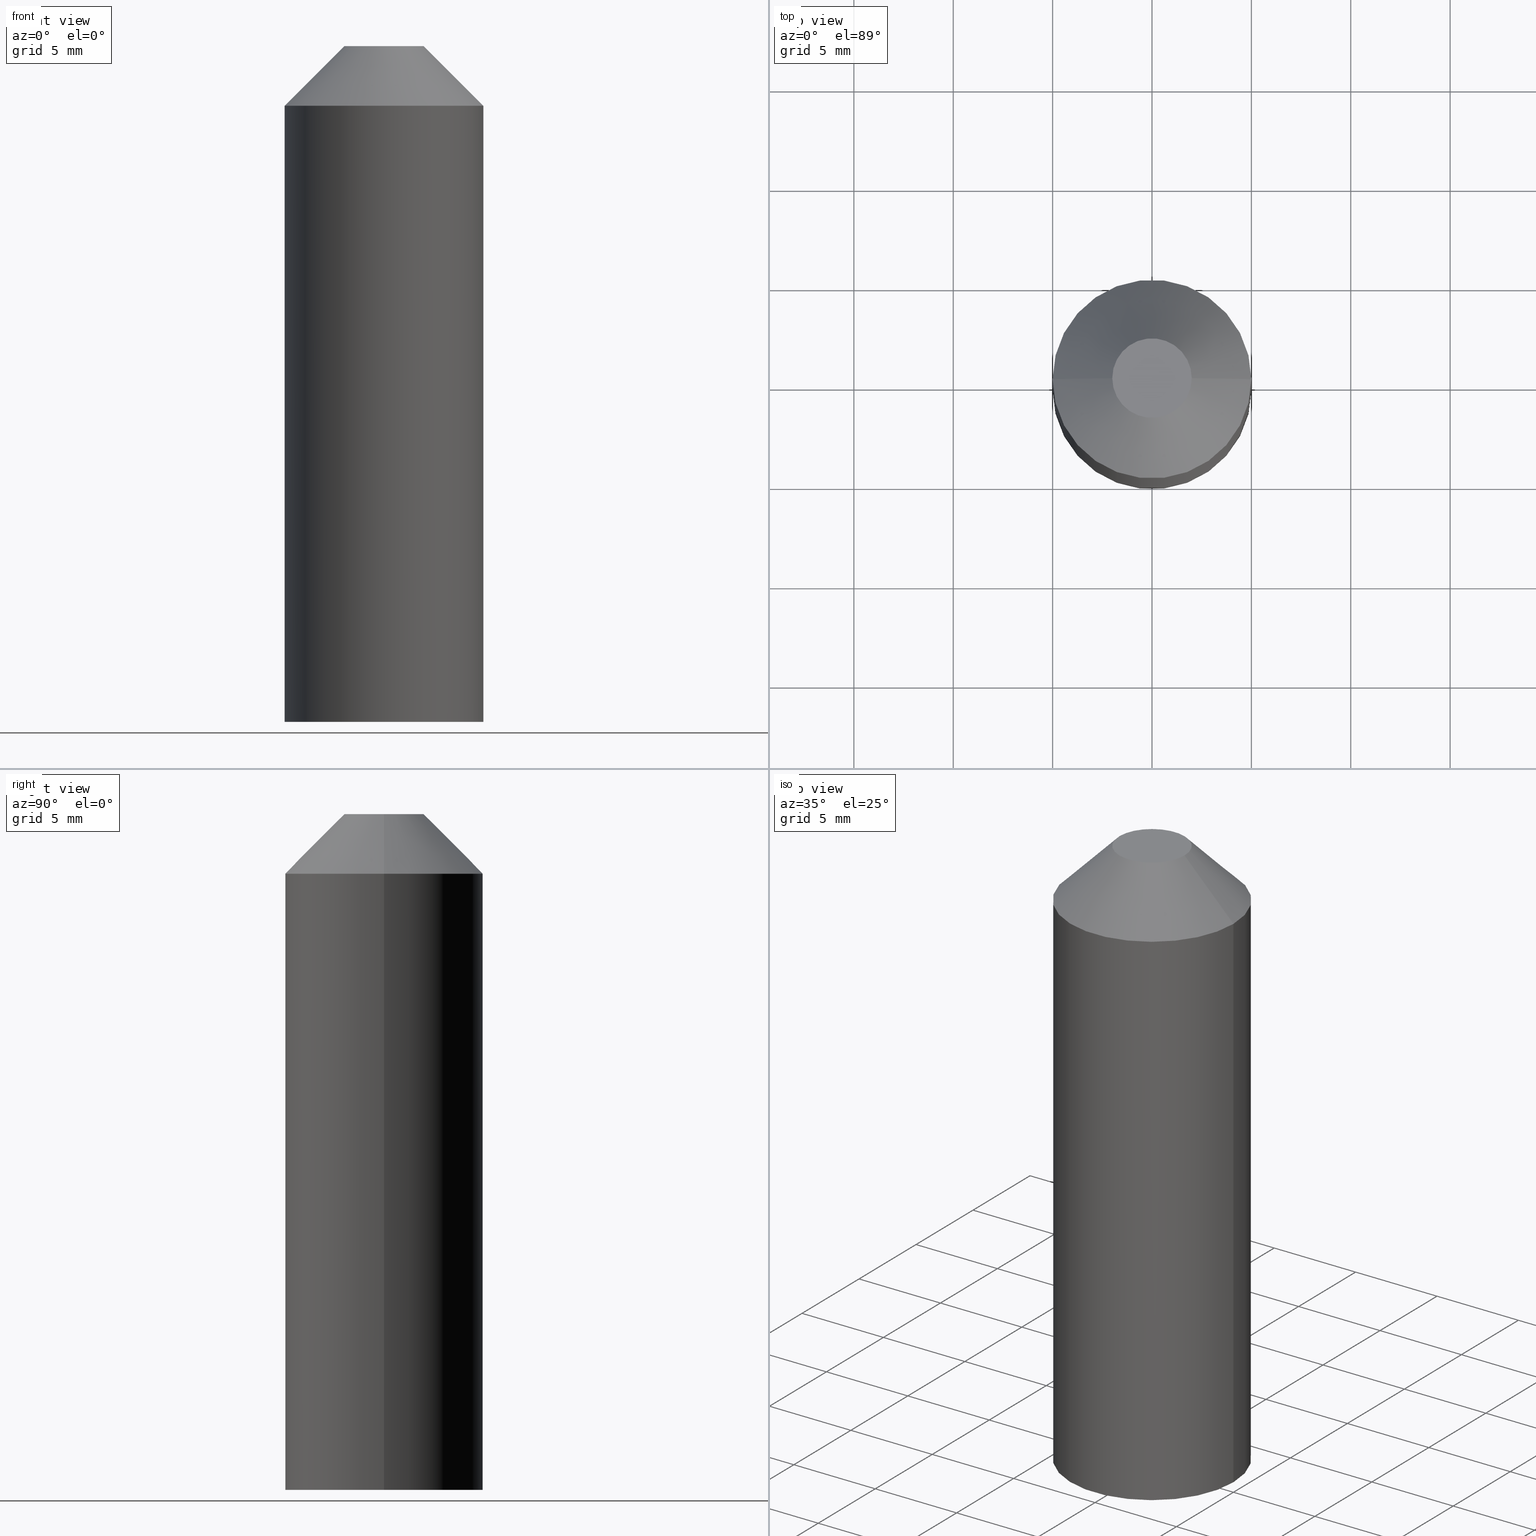
[diagram: canonical four-view strip — front | top / right | iso, engineering-drawing reading convention]
A machine part, canonical four-view strip (front | top / right | iso — engineering-drawing reading convention). The complete STEP part file that produces these views, byte-faithful:
ISO-10303-21;
HEADER;
FILE_DESCRIPTION (( 'STEP AP214' ),
    '1' );
FILE_NAME ('THA_324_1S.STEP',
    '2016-09-20T01:25:16',
    ( '' ),
    ( '' ),
    'SwSTEP 2.0',
    'SolidWorks 2015',
    '' );
FILE_SCHEMA (( 'AUTOMOTIVE_DESIGN' ));
ENDSEC;

DATA;
#1 = ORIENTED_EDGE ( 'NONE', *, *, #175, .F. ) ;
#2 = EDGE_CURVE ( 'NONE', #95, #160, #85, .T. ) ;
#3 = MECHANICAL_DESIGN_GEOMETRIC_PRESENTATION_REPRESENTATION (  '', ( #28 ), #21 ) ;
#4 = APPLICATION_PROTOCOL_DEFINITION ( 'draft international standard', 'automotive_design', 1998, #268 ) ;
#5 = ADVANCED_FACE ( 'NONE', ( #286 ), #285, .T. ) ;
#6 =( LENGTH_UNIT ( ) NAMED_UNIT ( * ) SI_UNIT ( .MILLI., .METRE. ) );
#7 = ORIENTED_EDGE ( 'NONE', *, *, #61, .F. ) ;
#8 = FILL_AREA_STYLE_COLOUR ( '', #144 ) ;
#9 = UNCERTAINTY_MEASURE_WITH_UNIT (LENGTH_MEASURE( 1.000000000000000100E-005 ), #271, 'distance_accuracy_value', 'NONE');
#10 = CARTESIAN_POINT ( 'NONE',  ( 1.999999999999999100, 4.286263797015613800E-016, 4.000000000000287800 ) ) ;
#11 = CIRCLE ( 'NONE', #259, 1.999999999999899900 ) ;
#12 = AXIS2_PLACEMENT_3D ( 'NONE', #132, #242, #137 ) ;
#13 = CARTESIAN_POINT ( 'NONE',  ( 9.947598300641398800E-014, 0.0000000000000000000, 4.000000000000287800 ) ) ;
#14 = PRESENTATION_STYLE_ASSIGNMENT (( #73 ) ) ;
#15 = ORIENTED_EDGE ( 'NONE', *, *, #169, .T. ) ;
#16 = CARTESIAN_POINT ( 'NONE',  ( 9.947598300641398800E-014, 0.0000000000000000000, -30.00000000000000000 ) ) ;
#17 = CARTESIAN_POINT ( 'NONE',  ( 9.947598300641398800E-014, 0.0000000000000000000, -30.00000000000000000 ) ) ;
#18 = VECTOR ( 'NONE', #114, 1000.000000000000000 ) ;
#19 = CYLINDRICAL_SURFACE ( 'NONE', #148, 4.999999999999900500 ) ;
#20 = DIRECTION ( 'NONE',  ( 1.000000000000000000, 0.0000000000000000000, 0.0000000000000000000 ) ) ;
#21 =( GEOMETRIC_REPRESENTATION_CONTEXT ( 3 ) GLOBAL_UNCERTAINTY_ASSIGNED_CONTEXT ( ( #119 ) ) GLOBAL_UNIT_ASSIGNED_CONTEXT ( ( #81, #278, #212 ) ) REPRESENTATION_CONTEXT ( 'NONE', 'WORKASPACE' ) );
#22 = CARTESIAN_POINT ( 'NONE',  ( 3.949999999999890000, 0.0000000000000000000, -30.00000000000000000 ) ) ;
#23 = CYLINDRICAL_SURFACE ( 'NONE', #181, 3.949999999999790600 ) ;
#24 = DIRECTION ( 'NONE',  ( 1.000000000000000000, 0.0000000000000000000, 0.0000000000000000000 ) ) ;
#25 = CIRCLE ( 'NONE', #164, 4.999999999999900500 ) ;
#26 = LINE ( 'NONE', #161, #18 ) ;
#27 = CONICAL_SURFACE ( 'NONE', #218, 1.999999999999899900, 0.7853981633974479500 ) ;
#28 = STYLED_ITEM ( 'NONE', ( #54 ), #172 ) ;
#29 = ADVANCED_FACE ( 'NONE', ( #184 ), #23, .F. ) ;
#30 = DIRECTION ( 'NONE',  ( -0.0000000000000000000, 0.0000000000000000000, -1.000000000000000000 ) ) ;
#31 = VERTEX_POINT ( 'NONE', #140 ) ;
#32 = CARTESIAN_POINT ( 'NONE',  ( 1.999999999999999100, 2.449293598294584100E-016, 4.000000000000287800 ) ) ;
#33 = EDGE_CURVE ( 'NONE', #68, #160, #25, .T. ) ;
#34 = AXIS2_PLACEMENT_3D ( 'NONE', #56, #275, #158 ) ;
#35 = DIRECTION ( 'NONE',  ( 0.0000000000000000000, 0.0000000000000000000, 1.000000000000000000 ) ) ;
#36 = CARTESIAN_POINT ( 'NONE',  ( 0.0000000000000000000, 0.0000000000000000000, 0.0000000000000000000 ) ) ;
#37 = ORIENTED_EDGE ( 'NONE', *, *, #116, .F. ) ;
#38 = CARTESIAN_POINT ( 'NONE',  ( 9.947598300641398800E-014, 0.0000000000000000000, -30.00000000000000000 ) ) ;
#39 = CONTEXT_DEPENDENT_SHAPE_REPRESENTATION ( #69, #224 ) ;
#40 = CARTESIAN_POINT ( 'NONE',  ( -4.999999999999801000, 6.123233995736644000E-016, -30.00000000000000000 ) ) ;
#41 = PRODUCT_DEFINITION_CONTEXT ( 'detailed design', #268, 'design' ) ;
#42 = DIRECTION ( 'NONE',  ( 1.000000000000000000, 0.0000000000000000000, 0.0000000000000000000 ) ) ;
#43 = FACE_OUTER_BOUND ( 'NONE', #187, .T. ) ;
#44 = ORIENTED_EDGE ( 'NONE', *, *, #93, .F. ) ;
#45 = SHAPE_DEFINITION_REPRESENTATION ( #179, #266 ) ;
#46 = CIRCLE ( 'NONE', #131, 3.949999999999790600 ) ;
#47 = EDGE_CURVE ( 'NONE', #186, #31, #304, .T. ) ;
#48 = DIRECTION ( 'NONE',  ( 0.0000000000000000000, 0.0000000000000000000, 1.000000000000000000 ) ) ;
#49 = PRESENTATION_LAYER_ASSIGNMENT (  '', '', ( #219 ) ) ;
#50 = PLANE ( 'NONE',  #182 ) ;
#51 = APPLICATION_CONTEXT ( 'automotive_design' ) ;
#52 = DIRECTION ( 'NONE',  ( 1.000000000000000000, 0.0000000000000000000, 0.0000000000000000000 ) ) ;
#53 = CIRCLE ( 'NONE', #246, 3.949999999999790600 ) ;
#54 = PRESENTATION_STYLE_ASSIGNMENT (( #111 ) ) ;
#55 = DIRECTION ( 'NONE',  ( 0.0000000000000000000, 0.0000000000000000000, 1.000000000000000000 ) ) ;
#56 = CARTESIAN_POINT ( 'NONE',  ( 9.947598300641398800E-014, 0.0000000000000000000, 0.0000000000000000000 ) ) ;
#57 = CARTESIAN_POINT ( 'NONE',  ( 9.947598300641398800E-014, 0.0000000000000000000, 4.000000000000287800 ) ) ;
#58 = SHAPE_REPRESENTATION_RELATIONSHIP ( 'NONE' , 'NONE' ,  #162, #262 ) ;
#59 = CARTESIAN_POINT ( 'NONE',  ( 5.000000000000000000, 0.0000000000000000000, -30.00000000000000000 ) ) ;
#60 = ORIENTED_EDGE ( 'NONE', *, *, #267, .F. ) ;
#61 = EDGE_CURVE ( 'NONE', #257, #156, #200, .T. ) ;
#62 = AXIS2_PLACEMENT_3D ( 'NONE', #157, #189, #294 ) ;
#63 = DIRECTION ( 'NONE',  ( -0.7071067811865472400, 0.0000000000000000000, -0.7071067811865479100 ) ) ;
#64 = CARTESIAN_POINT ( 'NONE',  ( 5.000000000000000000, 0.0000000000000000000, 1.000000000000285300 ) ) ;
#65 = EDGE_LOOP ( 'NONE', ( #174, #121 ) ) ;
#66 = MECHANICAL_DESIGN_GEOMETRIC_PRESENTATION_REPRESENTATION (  '', ( #219 ), #82 ) ;
#67 = ORIENTED_EDGE ( 'NONE', *, *, #33, .T. ) ;
#68 = VERTEX_POINT ( 'NONE', #118 ) ;
#69 =( REPRESENTATION_RELATIONSHIP ('NONE','NONE', #266, #162 ) REPRESENTATION_RELATIONSHIP_WITH_TRANSFORMATION ( #238 )SHAPE_REPRESENTATION_RELATIONSHIP( ) );
#70 = FACE_OUTER_BOUND ( 'NONE', #260, .T. ) ;
#71 = APPLICATION_CONTEXT ( 'automotive_design' ) ;
#72 = ORIENTED_EDGE ( 'NONE', *, *, #265, .T. ) ;
#73 = SURFACE_STYLE_USAGE ( .BOTH. , #270 ) ;
#74 = FACE_OUTER_BOUND ( 'NONE', #65, .T. ) ;
#75 = CARTESIAN_POINT ( 'NONE',  ( 0.0000000000000000000, 0.0000000000000000000, 0.0000000000000000000 ) ) ;
#76 = CARTESIAN_POINT ( 'NONE',  ( 9.947598300641398800E-014, 0.0000000000000000000, -30.00000000000000000 ) ) ;
#77 = PRODUCT_DEFINITION_CONTEXT ( 'detailed design', #94, 'design' ) ;
#78 = AXIS2_PLACEMENT_3D ( 'NONE', #239, #87, #274 ) ;
#79 = DIRECTION ( 'NONE',  ( 0.0000000000000000000, 0.0000000000000000000, 1.000000000000000000 ) ) ;
#80 = VECTOR ( 'NONE', #217, 1000.000000000000000 ) ;
#81 =( LENGTH_UNIT ( ) NAMED_UNIT ( * ) SI_UNIT ( .MILLI., .METRE. ) );
#82 =( GEOMETRIC_REPRESENTATION_CONTEXT ( 3 ) GLOBAL_UNCERTAINTY_ASSIGNED_CONTEXT ( ( #216 ) ) GLOBAL_UNIT_ASSIGNED_CONTEXT ( ( #204, #254, #91 ) ) REPRESENTATION_CONTEXT ( 'NONE', 'WORKASPACE' ) );
#83 = DIRECTION ( 'NONE',  ( -0.0000000000000000000, -0.0000000000000000000, -1.000000000000000000 ) ) ;
#84 = CARTESIAN_POINT ( 'NONE',  ( 9.947598300641398800E-014, 0.0000000000000000000, 4.000000000000287800 ) ) ;
#85 = LINE ( 'NONE', #59, #80 ) ;
#86 = CARTESIAN_POINT ( 'NONE',  ( 3.949999999999890000, 0.0000000000000000000, 0.0000000000000000000 ) ) ;
#87 = DIRECTION ( 'NONE',  ( 0.0000000000000000000, 0.0000000000000000000, 1.000000000000000000 ) ) ;
#88 = DIRECTION ( 'NONE',  ( -0.0000000000000000000, 0.0000000000000000000, -1.000000000000000000 ) ) ;
#89 = SURFACE_STYLE_FILL_AREA ( #135 ) ;
#90 = EDGE_LOOP ( 'NONE', ( #105, #236, #110, #220 ) ) ;
#91 =( NAMED_UNIT ( * ) SI_UNIT ( $, .STERADIAN. ) SOLID_ANGLE_UNIT ( ) );
#92 = CIRCLE ( 'NONE', #273, 4.999999999999900500 ) ;
#93 = EDGE_CURVE ( 'NONE', #196, #186, #195, .T. ) ;
#94 = APPLICATION_CONTEXT ( 'automotive_design' ) ;
#95 = VERTEX_POINT ( 'NONE', #302 ) ;
#96 = ADVANCED_FACE ( 'NONE', ( #243 ), #27, .T. ) ;
#97 = CIRCLE ( 'NONE', #34, 3.949999999999790600 ) ;
#98 =( NAMED_UNIT ( * ) PLANE_ANGLE_UNIT ( ) SI_UNIT ( $, .RADIAN. ) );
#99 = LINE ( 'NONE', #178, #235 ) ;
#100 = ORIENTED_EDGE ( 'NONE', *, *, #109, .T. ) ;
#101 = CLOSED_SHELL ( 'NONE', ( #5, #202, #29, #124, #288, #247, #96, #150, #226 ) ) ;
#102 = ORIENTED_EDGE ( 'NONE', *, *, #116, .T. ) ;
#103 = DIRECTION ( 'NONE',  ( 1.000000000000000000, 0.0000000000000000000, 0.0000000000000000000 ) ) ;
#104 = EDGE_CURVE ( 'NONE', #160, #68, #230, .T. ) ;
#105 = ORIENTED_EDGE ( 'NONE', *, *, #109, .F. ) ;
#106 = DIRECTION ( 'NONE',  ( 1.000000000000000000, 0.0000000000000000000, 0.0000000000000000000 ) ) ;
#107 = DIRECTION ( 'NONE',  ( 1.000000000000000000, 0.0000000000000000000, 0.0000000000000000000 ) ) ;
#108 = SURFACE_SIDE_STYLE ('',( #89 ) ) ;
#109 = EDGE_CURVE ( 'NONE', #186, #196, #53, .T. ) ;
#110 = ORIENTED_EDGE ( 'NONE', *, *, #192, .T. ) ;
#111 = SURFACE_STYLE_USAGE ( .BOTH. , #108 ) ;
#112 = DIRECTION ( 'NONE',  ( 0.0000000000000000000, 0.0000000000000000000, 1.000000000000000000 ) ) ;
#113 = DIRECTION ( 'NONE',  ( 0.0000000000000000000, 0.0000000000000000000, 1.000000000000000000 ) ) ;
#114 = DIRECTION ( 'NONE',  ( 0.0000000000000000000, 0.0000000000000000000, 1.000000000000000000 ) ) ;
#115 = ORIENTED_EDGE ( 'NONE', *, *, #283, .T. ) ;
#116 = EDGE_CURVE ( 'NONE', #156, #257, #11, .T. ) ;
#117 = AXIS2_PLACEMENT_3D ( 'NONE', #136, #88, #305 ) ;
#118 = CARTESIAN_POINT ( 'NONE',  ( -4.999999999999801000, 6.123233995736644000E-016, 1.000000000000285300 ) ) ;
#119 = UNCERTAINTY_MEASURE_WITH_UNIT (LENGTH_MEASURE( 1.000000000000000100E-005 ), #81, 'distance_accuracy_value', 'NONE');
#120 = LINE ( 'NONE', #32, #264 ) ;
#121 = ORIENTED_EDGE ( 'NONE', *, *, #192, .F. ) ;
#122 = PRODUCT_CONTEXT ( 'NONE', #51, 'mechanical' ) ;
#123 = VECTOR ( 'NONE', #193, 1000.000000000000000 ) ;
#124 = ADVANCED_FACE ( 'NONE', ( #70 ), #223, .F. ) ;
#125 = ORIENTED_EDGE ( 'NONE', *, *, #104, .T. ) ;
#126 = EDGE_LOOP ( 'NONE', ( #7, #229, #125, #284 ) ) ;
#127 = DIRECTION ( 'NONE',  ( 1.000000000000000000, 0.0000000000000000000, 0.0000000000000000000 ) ) ;
#128 = CARTESIAN_POINT ( 'NONE',  ( -1.999999999999800600, 0.0000000000000000000, 4.000000000000287800 ) ) ;
#129 = DIRECTION ( 'NONE',  ( 0.0000000000000000000, 0.0000000000000000000, 1.000000000000000000 ) ) ;
#130 = AXIS2_PLACEMENT_3D ( 'NONE', #13, #166, #191 ) ;
#131 = AXIS2_PLACEMENT_3D ( 'NONE', #155, #291, #127 ) ;
#132 = CARTESIAN_POINT ( 'NONE',  ( 9.947598300641398800E-014, 0.0000000000000000000, 4.000000000000285100 ) ) ;
#133 = DIRECTION ( 'NONE',  ( 0.0000000000000000000, 0.0000000000000000000, 1.000000000000000000 ) ) ;
#134 = AXIS2_PLACEMENT_3D ( 'NONE', #36, #256, #171 ) ;
#135 = FILL_AREA_STYLE ('',( #282 ) ) ;
#136 = CARTESIAN_POINT ( 'NONE',  ( 3.949999999999890000, 0.0000000000000000000, 0.0000000000000000000 ) ) ;
#137 = DIRECTION ( 'NONE',  ( 1.000000000000000000, 0.0000000000000000000, -0.0000000000000000000 ) ) ;
#138 = DIRECTION ( 'NONE',  ( 1.000000000000000000, 0.0000000000000000000, 0.0000000000000000000 ) ) ;
#139 = EDGE_LOOP ( 'NONE', ( #1, #15, #269, #280 ) ) ;
#140 = CARTESIAN_POINT ( 'NONE',  ( -3.949999999999690600, 4.837354856631787700E-016, 0.0000000000000000000 ) ) ;
#141 = FACE_OUTER_BOUND ( 'NONE', #248, .T. ) ;
#142 = ORIENTED_EDGE ( 'NONE', *, *, #209, .F. ) ;
#143 = ORIENTED_EDGE ( 'NONE', *, *, #47, .F. ) ;
#144 = COLOUR_RGB ( '',0.7921568627450980000, 0.8196078431372548800, 0.9333333333333333500 ) ;
#145 = CIRCLE ( 'NONE', #62, 4.999999999999900500 ) ;
#146 = ORIENTED_EDGE ( 'NONE', *, *, #93, .T. ) ;
#147 = AXIS2_PLACEMENT_3D ( 'NONE', #57, #113, #138 ) ;
#148 = AXIS2_PLACEMENT_3D ( 'NONE', #76, #300, #210 ) ;
#149 = APPLICATION_PROTOCOL_DEFINITION ( 'draft international standard', 'automotive_design', 1998, #51 ) ;
#150 = ADVANCED_FACE ( 'NONE', ( #141 ), #299, .T. ) ;
#151 = FACE_OUTER_BOUND ( 'NONE', #255, .T. ) ;
#152 = UNCERTAINTY_MEASURE_WITH_UNIT (LENGTH_MEASURE( 1.000000000000000100E-005 ), #6, 'distance_accuracy_value', 'NONE');
#153 = AXIS2_PLACEMENT_3D ( 'NONE', #75, #177, #103 ) ;
#154 = ORIENTED_EDGE ( 'NONE', *, *, #2, .F. ) ;
#155 = CARTESIAN_POINT ( 'NONE',  ( 9.947598300641398800E-014, 0.0000000000000000000, 0.0000000000000000000 ) ) ;
#156 = VERTEX_POINT ( 'NONE', #233 ) ;
#157 = CARTESIAN_POINT ( 'NONE',  ( 9.947598300641398800E-014, 0.0000000000000000000, -30.00000000000000000 ) ) ;
#158 = DIRECTION ( 'NONE',  ( 1.000000000000000000, 0.0000000000000000000, 0.0000000000000000000 ) ) ;
#159 = CARTESIAN_POINT ( 'NONE',  ( -3.949999999999690600, 4.837354856631787700E-016, -30.00000000000000000 ) ) ;
#160 = VERTEX_POINT ( 'NONE', #64 ) ;
#161 = CARTESIAN_POINT ( 'NONE',  ( -4.999999999999801000, 6.123233995736644000E-016, -30.00000000000000000 ) ) ;
#162 = SHAPE_REPRESENTATION ( 'cap', ( #199 ), #165 ) ;
#163 = PRODUCT_RELATED_PRODUCT_CATEGORY ( 'part', '', ( #197 ) ) ;
#164 = AXIS2_PLACEMENT_3D ( 'NONE', #183, #194, #24 ) ;
#165 =( GEOMETRIC_REPRESENTATION_CONTEXT ( 3 ) GLOBAL_UNCERTAINTY_ASSIGNED_CONTEXT ( ( #9 ) ) GLOBAL_UNIT_ASSIGNED_CONTEXT ( ( #271, #98, #249 ) ) REPRESENTATION_CONTEXT ( 'NONE', 'WORKASPACE' ) );
#166 = DIRECTION ( 'NONE',  ( -0.0000000000000000000, -0.0000000000000000000, -1.000000000000000000 ) ) ;
#167 = ORIENTED_EDGE ( 'NONE', *, *, #175, .T. ) ;
#168 =( GEOMETRIC_REPRESENTATION_CONTEXT ( 3 ) GLOBAL_UNCERTAINTY_ASSIGNED_CONTEXT ( ( #152 ) ) GLOBAL_UNIT_ASSIGNED_CONTEXT ( ( #6, #287, #234 ) ) REPRESENTATION_CONTEXT ( 'NONE', 'WORKASPACE' ) );
#169 = EDGE_CURVE ( 'NONE', #214, #95, #92, .T. ) ;
#170 = PRODUCT_CONTEXT ( 'NONE', #71, 'mechanical' ) ;
#171 = DIRECTION ( 'NONE',  ( 1.000000000000000000, 0.0000000000000000000, 0.0000000000000000000 ) ) ;
#172 = MANIFOLD_SOLID_BREP ( '��]1', #101 ) ;
#173 = DIRECTION ( 'NONE',  ( 1.000000000000000000, 0.0000000000000000000, 0.0000000000000000000 ) ) ;
#174 = ORIENTED_EDGE ( 'NONE', *, *, #265, .F. ) ;
#175 = EDGE_CURVE ( 'NONE', #214, #68, #26, .T. ) ;
#176 = DIRECTION ( 'NONE',  ( -1.000000000000000000, 0.0000000000000000000, 0.0000000000000000000 ) ) ;
#177 = DIRECTION ( 'NONE',  ( 0.0000000000000000000, 0.0000000000000000000, 1.000000000000000000 ) ) ;
#178 = CARTESIAN_POINT ( 'NONE',  ( 3.949999999999890000, 0.0000000000000000000, -30.00000000000000000 ) ) ;
#179 = PRODUCT_DEFINITION_SHAPE ( 'NONE', 'NONE',  #237 ) ;
#180 = FACE_OUTER_BOUND ( 'NONE', #139, .T. ) ;
#181 = AXIS2_PLACEMENT_3D ( 'NONE', #16, #55, #42 ) ;
#182 = AXIS2_PLACEMENT_3D ( 'NONE', #250, #30, #176 ) ;
#183 = CARTESIAN_POINT ( 'NONE',  ( 9.947598300641398800E-014, 0.0000000000000000000, 1.000000000000285300 ) ) ;
#184 = FACE_OUTER_BOUND ( 'NONE', #90, .T. ) ;
#185 = DIRECTION ( 'NONE',  ( 1.000000000000000000, 0.0000000000000000000, 0.0000000000000000000 ) ) ;
#186 = VERTEX_POINT ( 'NONE', #159 ) ;
#187 = EDGE_LOOP ( 'NONE', ( #142, #228 ) ) ;
#188 = AXIS2_PLACEMENT_3D ( 'NONE', #272, #129, #253 ) ;
#189 = DIRECTION ( 'NONE',  ( 0.0000000000000000000, 0.0000000000000000000, 1.000000000000000000 ) ) ;
#190 = DIRECTION ( 'NONE',  ( -1.000000000000000000, 0.0000000000000000000, 0.0000000000000000000 ) ) ;
#191 = DIRECTION ( 'NONE',  ( -1.000000000000000000, 0.0000000000000000000, 0.0000000000000000000 ) ) ;
#192 = EDGE_CURVE ( 'NONE', #31, #203, #97, .T. ) ;
#193 = DIRECTION ( 'NONE',  ( 0.0000000000000000000, 0.0000000000000000000, 1.000000000000000000 ) ) ;
#194 = DIRECTION ( 'NONE',  ( 0.0000000000000000000, 0.0000000000000000000, 1.000000000000000000 ) ) ;
#195 = CIRCLE ( 'NONE', #198, 3.949999999999790600 ) ;
#196 = VERTEX_POINT ( 'NONE', #22 ) ;
#197 = PRODUCT ( 'cap', 'cap', '', ( #122 ) ) ;
#198 = AXIS2_PLACEMENT_3D ( 'NONE', #38, #35, #20 ) ;
#199 = AXIS2_PLACEMENT_3D ( 'NONE', #227, #48, #173 ) ;
#200 = CIRCLE ( 'NONE', #147, 1.999999999999899900 ) ;
#201 = APPLICATION_PROTOCOL_DEFINITION ( 'draft international standard', 'automotive_design', 1998, #71 ) ;
#202 = ADVANCED_FACE ( 'NONE', ( #151 ), #306, .T. ) ;
#203 = VERTEX_POINT ( 'NONE', #86 ) ;
#204 =( LENGTH_UNIT ( ) NAMED_UNIT ( * ) SI_UNIT ( .MILLI., .METRE. ) );
#205 = ORIENTED_EDGE ( 'NONE', *, *, #61, .T. ) ;
#206 = PRODUCT_DEFINITION ( 'UNKNOWN', '', #281, #77 ) ;
#207 = FACE_BOUND ( 'NONE', #213, .T. ) ;
#208 = DIRECTION ( 'NONE',  ( 0.0000000000000000000, 0.0000000000000000000, 1.000000000000000000 ) ) ;
#209 = EDGE_CURVE ( 'NONE', #95, #214, #145, .T. ) ;
#210 = DIRECTION ( 'NONE',  ( 1.000000000000000000, 0.0000000000000000000, 0.0000000000000000000 ) ) ;
#211 = CARTESIAN_POINT ( 'NONE',  ( 9.947598300641398800E-014, 0.0000000000000000000, 1.000000000000285300 ) ) ;
#212 =( NAMED_UNIT ( * ) SI_UNIT ( $, .STERADIAN. ) SOLID_ANGLE_UNIT ( ) );
#213 = EDGE_LOOP ( 'NONE', ( #146, #100 ) ) ;
#214 = VERTEX_POINT ( 'NONE', #40 ) ;
#215 = DIRECTION ( 'NONE',  ( 0.0000000000000000000, 0.0000000000000000000, 1.000000000000000000 ) ) ;
#216 = UNCERTAINTY_MEASURE_WITH_UNIT (LENGTH_MEASURE( 1.000000000000000100E-005 ), #204, 'distance_accuracy_value', 'NONE');
#217 = DIRECTION ( 'NONE',  ( 0.0000000000000000000, 0.0000000000000000000, 1.000000000000000000 ) ) ;
#218 = AXIS2_PLACEMENT_3D ( 'NONE', #301, #83, #190 ) ;
#219 = STYLED_ITEM ( 'NONE', ( #14 ), #262 ) ;
#220 = ORIENTED_EDGE ( 'NONE', *, *, #283, .F. ) ;
#221 = ORIENTED_EDGE ( 'NONE', *, *, #209, .T. ) ;
#222 = SURFACE_STYLE_FILL_AREA ( #289 ) ;
#223 = CYLINDRICAL_SURFACE ( 'NONE', #303, 3.949999999999790600 ) ;
#224 = PRODUCT_DEFINITION_SHAPE ( 'NONE', 'NONE',  #307 ) ;
#225 = PRODUCT ( 'THA_324_1S', 'THA_324_1S', '', ( #170 ) ) ;
#226 = ADVANCED_FACE ( 'NONE', ( #74 ), #240, .T. ) ;
#227 = CARTESIAN_POINT ( 'NONE',  ( 0.0000000000000000000, 0.0000000000000000000, 0.0000000000000000000 ) ) ;
#228 = ORIENTED_EDGE ( 'NONE', *, *, #169, .F. ) ;
#229 = ORIENTED_EDGE ( 'NONE', *, *, #267, .T. ) ;
#230 = CIRCLE ( 'NONE', #231, 4.999999999999900500 ) ;
#231 = AXIS2_PLACEMENT_3D ( 'NONE', #211, #79, #106 ) ;
#232 = DIRECTION ( 'NONE',  ( 0.0000000000000000000, 0.0000000000000000000, 1.000000000000000000 ) ) ;
#233 = CARTESIAN_POINT ( 'NONE',  ( -1.999999999999800600, 0.0000000000000000000, 4.000000000000287800 ) ) ;
#234 =( NAMED_UNIT ( * ) SI_UNIT ( $, .STERADIAN. ) SOLID_ANGLE_UNIT ( ) );
#235 = VECTOR ( 'NONE', #208, 1000.000000000000000 ) ;
#236 = ORIENTED_EDGE ( 'NONE', *, *, #47, .T. ) ;
#237 = PRODUCT_DEFINITION ( 'UNKNOWN', '', #251, #41 ) ;
#238 = ITEM_DEFINED_TRANSFORMATION ( 'NONE', 'NONE', #153,  #199 ) ;
#239 = CARTESIAN_POINT ( 'NONE',  ( 9.947598300641398800E-014, 0.0000000000000000000, -30.00000000000000000 ) ) ;
#240 = PLANE ( 'NONE',  #117 ) ;
#241 = EDGE_CURVE ( 'NONE', #156, #68, #244, .T. ) ;
#242 = DIRECTION ( 'NONE',  ( 0.0000000000000000000, 0.0000000000000000000, 1.000000000000000000 ) ) ;
#243 = FACE_OUTER_BOUND ( 'NONE', #292, .T. ) ;
#244 = LINE ( 'NONE', #128, #252 ) ;
#245 = APPLICATION_PROTOCOL_DEFINITION ( 'draft international standard', 'automotive_design', 1998, #94 ) ;
#246 = AXIS2_PLACEMENT_3D ( 'NONE', #276, #112, #52 ) ;
#247 = ADVANCED_FACE ( 'NONE', ( #180 ), #19, .T. ) ;
#248 = EDGE_LOOP ( 'NONE', ( #102, #205 ) ) ;
#249 =( NAMED_UNIT ( * ) SI_UNIT ( $, .STERADIAN. ) SOLID_ANGLE_UNIT ( ) );
#250 = CARTESIAN_POINT ( 'NONE',  ( 5.000000000000000000, 0.0000000000000000000, -30.00000000000000000 ) ) ;
#251 = PRODUCT_DEFINITION_FORMATION_WITH_SPECIFIED_SOURCE ( 'ANY', '', #225, .NOT_KNOWN. ) ;
#252 = VECTOR ( 'NONE', #63, 999.9999999999998900 ) ;
#253 = DIRECTION ( 'NONE',  ( 1.000000000000000000, 0.0000000000000000000, 0.0000000000000000000 ) ) ;
#254 =( NAMED_UNIT ( * ) PLANE_ANGLE_UNIT ( ) SI_UNIT ( $, .RADIAN. ) );
#255 = EDGE_LOOP ( 'NONE', ( #221, #167, #290, #154 ) ) ;
#256 = DIRECTION ( 'NONE',  ( 0.0000000000000000000, 0.0000000000000000000, 1.000000000000000000 ) ) ;
#257 = VERTEX_POINT ( 'NONE', #10 ) ;
#258 = CARTESIAN_POINT ( 'NONE',  ( -3.949999999999690600, 4.837354856631787700E-016, -30.00000000000000000 ) ) ;
#259 = AXIS2_PLACEMENT_3D ( 'NONE', #84, #215, #107 ) ;
#260 = EDGE_LOOP ( 'NONE', ( #143, #44, #115, #72 ) ) ;
#261 = ORIENTED_EDGE ( 'NONE', *, *, #241, .T. ) ;
#262 = ADVANCED_BREP_SHAPE_REPRESENTATION ( '', ( #172, #199 ), #165 ) ;
#263 = PRODUCT_RELATED_PRODUCT_CATEGORY ( 'part', '', ( #225 ) ) ;
#264 = VECTOR ( 'NONE', #295, 999.9999999999998900 ) ;
#265 = EDGE_CURVE ( 'NONE', #203, #31, #46, .T. ) ;
#266 = SHAPE_REPRESENTATION ( 'THA_324_1S', ( #188, #153 ), #168 ) ;
#267 = EDGE_CURVE ( 'NONE', #257, #160, #120, .T. ) ;
#268 = APPLICATION_CONTEXT ( 'automotive_design' ) ;
#269 = ORIENTED_EDGE ( 'NONE', *, *, #2, .T. ) ;
#270 = SURFACE_SIDE_STYLE ('',( #222 ) ) ;
#271 =( LENGTH_UNIT ( ) NAMED_UNIT ( * ) SI_UNIT ( .MILLI., .METRE. ) );
#272 = CARTESIAN_POINT ( 'NONE',  ( 0.0000000000000000000, 0.0000000000000000000, 0.0000000000000000000 ) ) ;
#273 = AXIS2_PLACEMENT_3D ( 'NONE', #298, #133, #277 ) ;
#274 = DIRECTION ( 'NONE',  ( 1.000000000000000000, 0.0000000000000000000, 0.0000000000000000000 ) ) ;
#275 = DIRECTION ( 'NONE',  ( 0.0000000000000000000, 0.0000000000000000000, 1.000000000000000000 ) ) ;
#276 = CARTESIAN_POINT ( 'NONE',  ( 9.947598300641398800E-014, 0.0000000000000000000, -30.00000000000000000 ) ) ;
#277 = DIRECTION ( 'NONE',  ( 1.000000000000000000, 0.0000000000000000000, 0.0000000000000000000 ) ) ;
#278 =( NAMED_UNIT ( * ) PLANE_ANGLE_UNIT ( ) SI_UNIT ( $, .RADIAN. ) );
#279 = COLOUR_RGB ( '',0.7921568627450980000, 0.8196078431372548800, 0.9333333333333333500 ) ;
#280 = ORIENTED_EDGE ( 'NONE', *, *, #33, .F. ) ;
#281 = PRODUCT_DEFINITION_FORMATION_WITH_SPECIFIED_SOURCE ( 'ANY', '', #197, .NOT_KNOWN. ) ;
#282 = FILL_AREA_STYLE_COLOUR ( '', #279 ) ;
#283 = EDGE_CURVE ( 'NONE', #196, #203, #99, .T. ) ;
#284 = ORIENTED_EDGE ( 'NONE', *, *, #241, .F. ) ;
#285 = CONICAL_SURFACE ( 'NONE', #130, 1.999999999999899900, 0.7853981633974479500 ) ;
#286 = FACE_OUTER_BOUND ( 'NONE', #126, .T. ) ;
#287 =( NAMED_UNIT ( * ) PLANE_ANGLE_UNIT ( ) SI_UNIT ( $, .RADIAN. ) );
#288 = ADVANCED_FACE ( 'NONE', ( #207, #43 ), #50, .T. ) ;
#289 = FILL_AREA_STYLE ('',( #8 ) ) ;
#290 = ORIENTED_EDGE ( 'NONE', *, *, #104, .F. ) ;
#291 = DIRECTION ( 'NONE',  ( 0.0000000000000000000, 0.0000000000000000000, 1.000000000000000000 ) ) ;
#292 = EDGE_LOOP ( 'NONE', ( #60, #37, #261, #67 ) ) ;
#293 = SHAPE_DEFINITION_REPRESENTATION ( #297, #162 ) ;
#294 = DIRECTION ( 'NONE',  ( 1.000000000000000000, 0.0000000000000000000, 0.0000000000000000000 ) ) ;
#295 = DIRECTION ( 'NONE',  ( 0.7071067811865472400, 8.659560562354930400E-017, -0.7071067811865479100 ) ) ;
#296 = PRESENTATION_LAYER_ASSIGNMENT (  '', '', ( #28 ) ) ;
#297 = PRODUCT_DEFINITION_SHAPE ( 'NONE', 'NONE',  #206 ) ;
#298 = CARTESIAN_POINT ( 'NONE',  ( 9.947598300641398800E-014, 0.0000000000000000000, -30.00000000000000000 ) ) ;
#299 = PLANE ( 'NONE',  #12 ) ;
#300 = DIRECTION ( 'NONE',  ( 0.0000000000000000000, 0.0000000000000000000, 1.000000000000000000 ) ) ;
#301 = CARTESIAN_POINT ( 'NONE',  ( 9.947598300641398800E-014, 0.0000000000000000000, 4.000000000000287800 ) ) ;
#302 = CARTESIAN_POINT ( 'NONE',  ( 5.000000000000000000, 0.0000000000000000000, -30.00000000000000000 ) ) ;
#303 = AXIS2_PLACEMENT_3D ( 'NONE', #17, #232, #185 ) ;
#304 = LINE ( 'NONE', #258, #123 ) ;
#305 = DIRECTION ( 'NONE',  ( -1.000000000000000000, 0.0000000000000000000, 0.0000000000000000000 ) ) ;
#306 = CYLINDRICAL_SURFACE ( 'NONE', #78, 4.999999999999900500 ) ;
#307 = NEXT_ASSEMBLY_USAGE_OCCURRENCE ( 'NAUO1', ' ', ' ', #237, #206, $ ) ;
ENDSEC;
END-ISO-10303-21;
